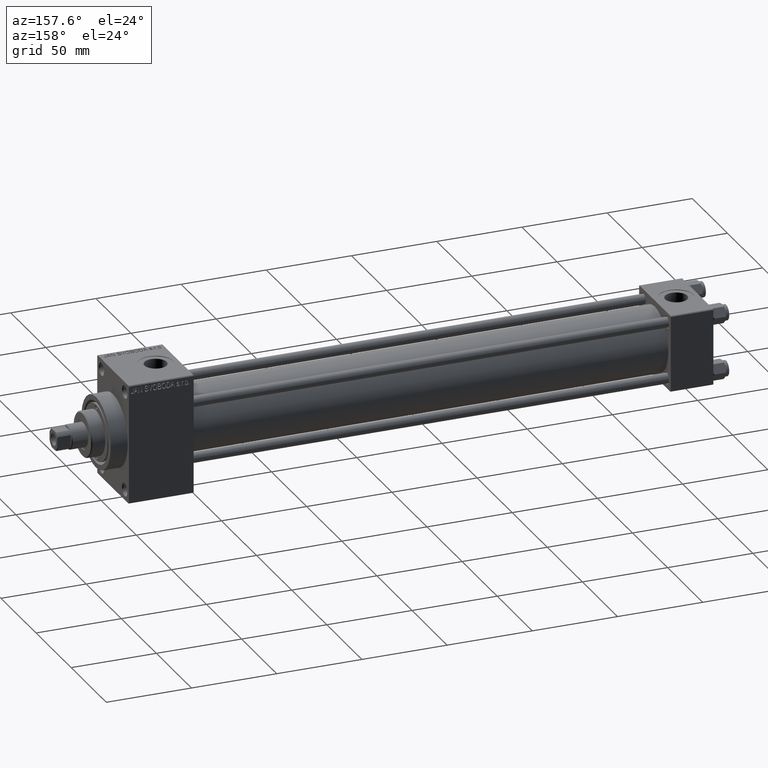
[diagram: clean part render]
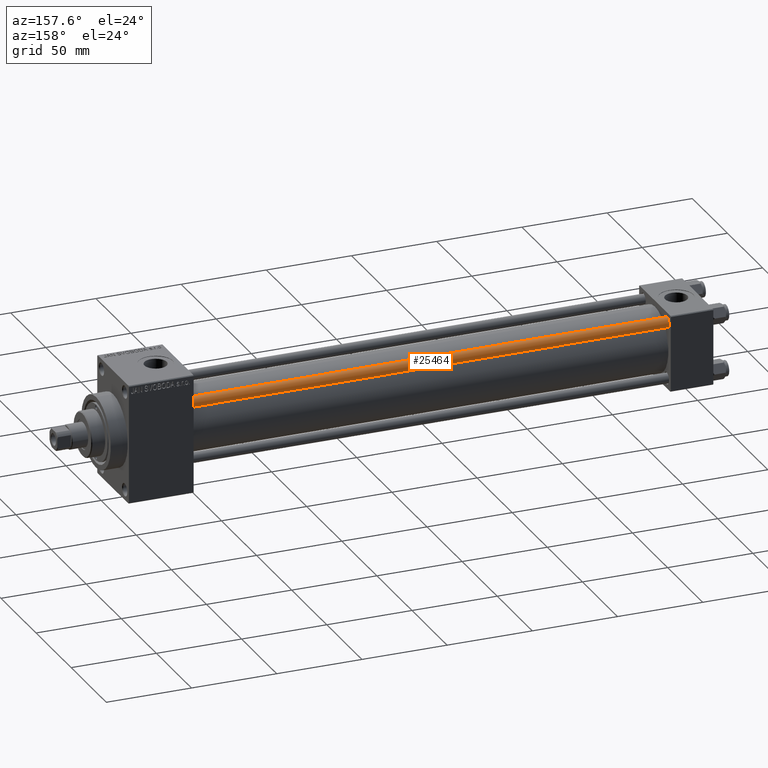
[diagram: same view with one face highlighted and labeled with its STEP entity id]
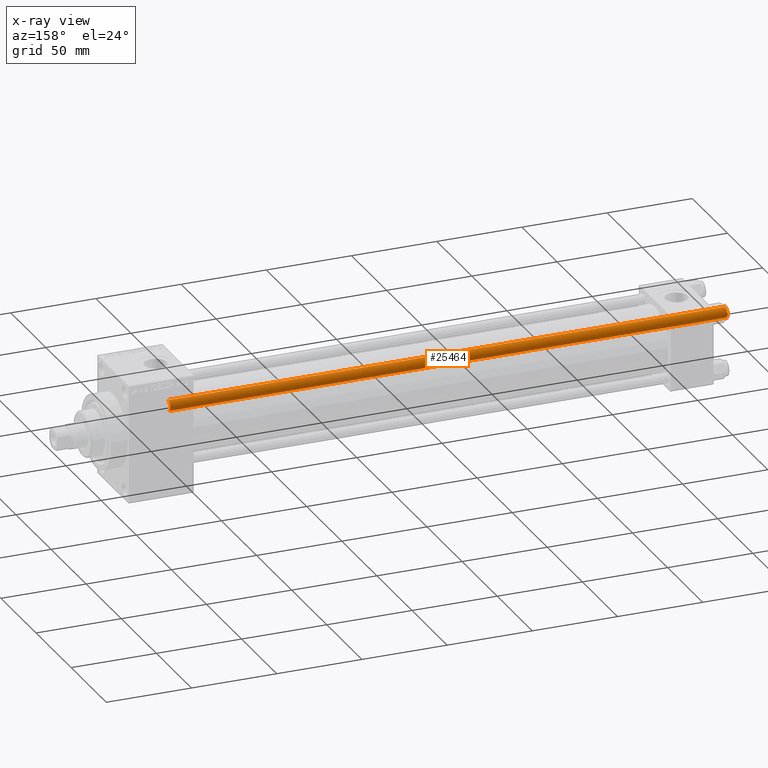
[diagram: x-ray of the same camera — body ghosted, the highlighted face saturated]
A machine part, auxiliary view. The second image highlights one B-rep face of the part: STEP entity #25464.
The next image is the same camera in x-ray: the body ghosted, the highlighted face saturated — about 0% of this face is hidden behind the body in this view.
In plain terms, the highlighted cylindrical surface (edge-blend (fillet) strip) has radius 3 mm, axis along (-1, -0, 0).
Its self-contained STEP definition (entity closure, byte-faithful):
#530 = VERTEX_POINT ( 'NONE', #36480 ) ;
#2496 = DIRECTION ( 'NONE',  ( -1.000000000000000000, 0.000000000000000000, 0.000000000000000000 ) ) ;
#2512 = CIRCLE ( 'NONE', #34621, 3.000000000000000444 ) ;
#2592 = CARTESIAN_POINT ( 'NONE',  ( 0.000000000000000000, 0.000000000000000000, 327.5000000000000000 ) ) ;
#3532 = CARTESIAN_POINT ( 'NONE',  ( 0.000000000000000000, 0.000000000000000000, 0.5000000000000559552 ) ) ;
#5841 = VERTEX_POINT ( 'NONE', #16719 ) ;
#6100 = CYLINDRICAL_SURFACE ( 'NONE', #22439, 3.000000000000000444 ) ;
#10455 = ORIENTED_EDGE ( 'NONE', *, *, #47170, .T. ) ;
#10657 = VECTOR ( 'NONE', #34005, 1000.000000000000000 ) ;
#10865 = EDGE_CURVE ( 'NONE', #43137, #530, #12202, .T. ) ;
#12202 = LINE ( 'NONE', #37357, #10657 ) ;
#12355 = CARTESIAN_POINT ( 'NONE',  ( -3.000000000000000444, 0.000000000000000000, 328.0000000000000000 ) ) ;
#14782 = DIRECTION ( 'NONE',  ( 1.000000000000000000, 0.000000000000000000, 0.000000000000000000 ) ) ;
#15464 = VECTOR ( 'NONE', #34629, 1000.000000000000000 ) ;
#16158 = LINE ( 'NONE', #12355, #15464 ) ;
#16719 = CARTESIAN_POINT ( 'NONE',  ( -3.000000000000000444, 0.000000000000000000, 0.5000000000000559552 ) ) ;
#16758 = CARTESIAN_POINT ( 'NONE',  ( 3.000000000000000444, 3.673940397442060361E-16, 327.5000000000000000 ) ) ;
#16855 = FACE_OUTER_BOUND ( 'NONE', #42826, .T. ) ;
#18146 = DIRECTION ( 'NONE',  ( -0.000000000000000000, -0.000000000000000000, 1.000000000000000000 ) ) ;
#18674 = ORIENTED_EDGE ( 'NONE', *, *, #19193, .F. ) ;
#19193 = EDGE_CURVE ( 'NONE', #22758, #5841, #16158, .T. ) ;
#20627 = EDGE_CURVE ( 'NONE', #530, #5841, #43825, .T. ) ;
#20761 = CARTESIAN_POINT ( 'NONE',  ( -3.000000000000000444, 0.000000000000000000, 327.5000000000000000 ) ) ;
#22439 = AXIS2_PLACEMENT_3D ( 'NONE', #31029, #31511, #2496 ) ;
#22758 = VERTEX_POINT ( 'NONE', #20761 ) ;
#25464 = ADVANCED_FACE ( 'NONE', ( #16855 ), #6100, .T. ) ;
#31029 = CARTESIAN_POINT ( 'NONE',  ( 0.000000000000000000, 0.000000000000000000, 328.0000000000000000 ) ) ;
#31421 = DIRECTION ( 'NONE',  ( 1.000000000000000000, 0.000000000000000000, 0.000000000000000000 ) ) ;
#31511 = DIRECTION ( 'NONE',  ( -0.000000000000000000, -0.000000000000000000, -1.000000000000000000 ) ) ;
#31842 = DIRECTION ( 'NONE',  ( 0.000000000000000000, 0.000000000000000000, -1.000000000000000000 ) ) ;
#33257 = ORIENTED_EDGE ( 'NONE', *, *, #10865, .T. ) ;
#34005 = DIRECTION ( 'NONE',  ( -0.000000000000000000, -0.000000000000000000, -1.000000000000000000 ) ) ;
#34621 = AXIS2_PLACEMENT_3D ( 'NONE', #2592, #31842, #14782 ) ;
#34629 = DIRECTION ( 'NONE',  ( -0.000000000000000000, -0.000000000000000000, -1.000000000000000000 ) ) ;
#36480 = CARTESIAN_POINT ( 'NONE',  ( 3.000000000000000444, 3.673940397442060361E-16, 0.5000000000000559552 ) ) ;
#37357 = CARTESIAN_POINT ( 'NONE',  ( 3.000000000000000444, 3.673940397442060361E-16, 328.0000000000000000 ) ) ;
#38363 = ORIENTED_EDGE ( 'NONE', *, *, #20627, .T. ) ;
#41430 = AXIS2_PLACEMENT_3D ( 'NONE', #3532, #18146, #31421 ) ;
#42826 = EDGE_LOOP ( 'NONE', ( #10455, #33257, #38363, #18674 ) ) ;
#43137 = VERTEX_POINT ( 'NONE', #16758 ) ;
#43825 = CIRCLE ( 'NONE', #41430, 3.000000000000000444 ) ;
#47170 = EDGE_CURVE ( 'NONE', #22758, #43137, #2512, .T. ) ;